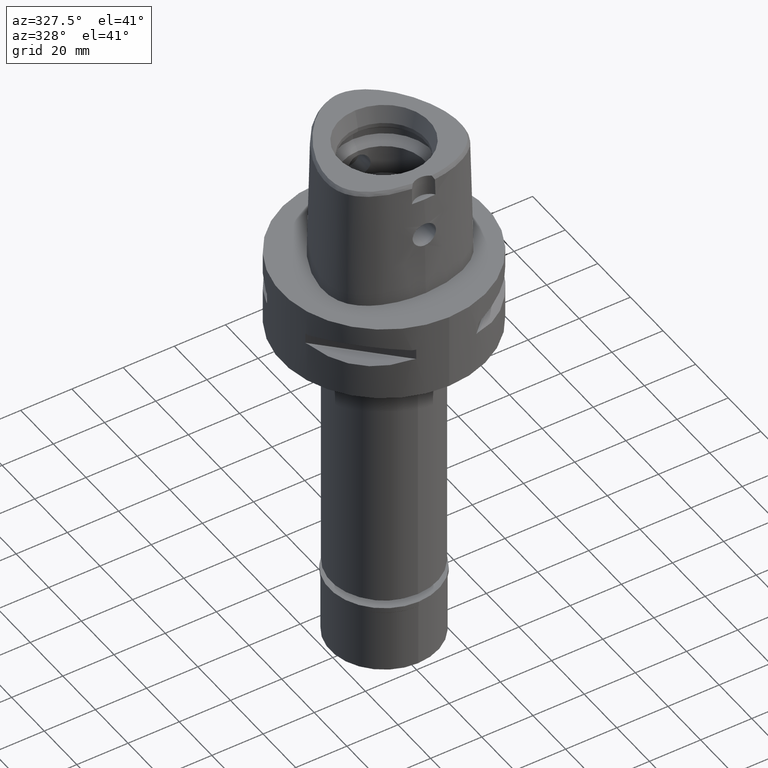
[diagram: clean part render]
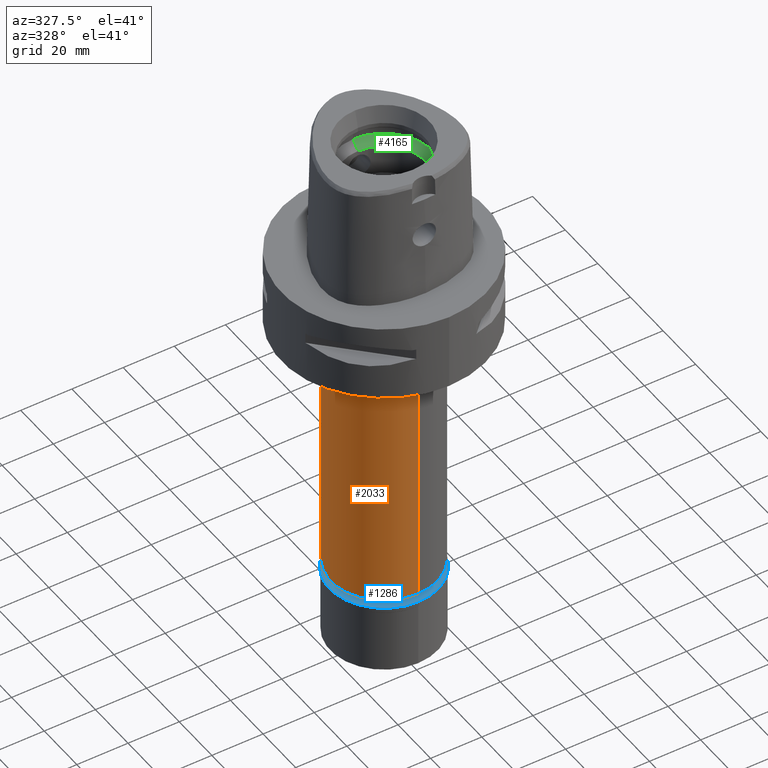
[diagram: same view with three faces highlighted in distinct colors, each labeled with its STEP entity id]
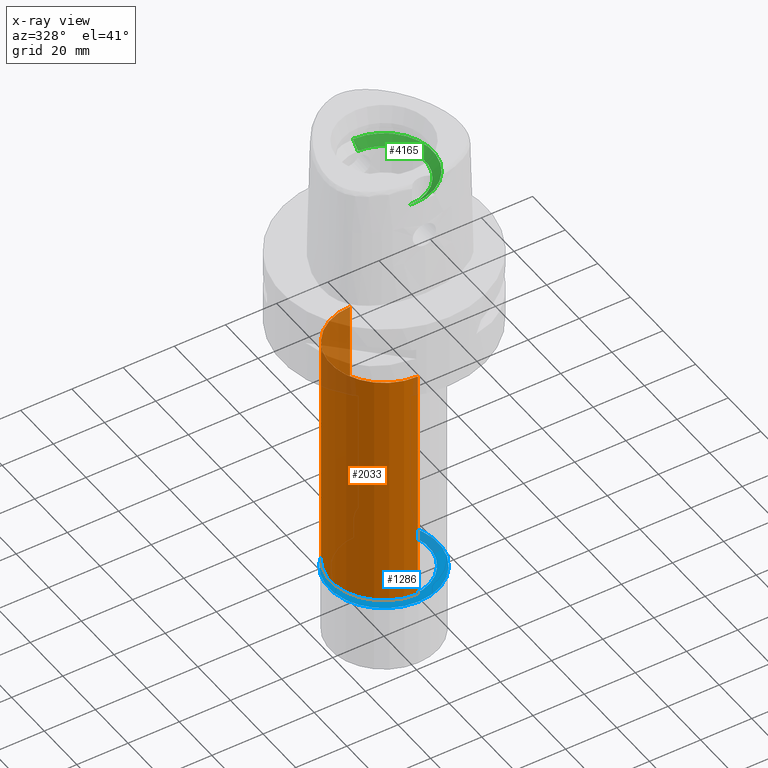
[diagram: x-ray of the same camera — body ghosted, the three highlighted faces saturated]
A machine part, auxiliary view with three faces highlighted in distinct colors.
The next image is the same camera in x-ray (body ghosted, the three faces saturated) — at least one of them is partly hidden behind the body in this view.
Their STEP definitions:

[orange] entity #2033 — the highlighted cylindrical surface (partial cylindrical patch) has radius 20.8 mm, axis along (0, 0, -1).
#21 = VERTEX_POINT ( 'NONE', #4106 ) ;
#518 = EDGE_CURVE ( 'NONE', #21, #1170, #3997, .T. ) ;
#543 = EDGE_CURVE ( 'NONE', #4333, #1170, #1305, .T. ) ;
#636 = DIRECTION ( 'NONE',  ( 0.0000000000000000000, 0.0000000000000000000, -1.000000000000000000 ) ) ;
#747 = EDGE_LOOP ( 'NONE', ( #3978, #1143, #3874, #4714 ) ) ;
#1136 = DIRECTION ( 'NONE',  ( 0.0000000000000000000, -1.000000000000000000, 0.0000000000000000000 ) ) ;
#1143 = ORIENTED_EDGE ( 'NONE', *, *, #518, .F. ) ;
#1149 = CARTESIAN_POINT ( 'NONE',  ( 0.0000000000000000000, 20.80000000000000071, -40.00000000000000000 ) ) ;
#1170 = VERTEX_POINT ( 'NONE', #2345 ) ;
#1289 = DIRECTION ( 'NONE',  ( 0.0000000000000000000, -1.000000000000000000, 0.0000000000000000000 ) ) ;
#1305 = CIRCLE ( 'NONE', #3128, 20.80000000000000071 ) ;
#1490 = VECTOR ( 'NONE', #636, 1000.000000000000000 ) ;
#1603 = VERTEX_POINT ( 'NONE', #1149 ) ;
#1917 = CYLINDRICAL_SURFACE ( 'NONE', #2875, 20.80000000000000071 ) ;
#1941 = FACE_OUTER_BOUND ( 'NONE', #747, .T. ) ;
#1947 = DIRECTION ( 'NONE',  ( 0.0000000000000000000, 0.0000000000000000000, 1.000000000000000000 ) ) ;
#1980 = CIRCLE ( 'NONE', #2627, 20.80000000000000071 ) ;
#2033 = ADVANCED_FACE ( 'NONE', ( #1941 ), #1917, .T. ) ;
#2345 = CARTESIAN_POINT ( 'NONE',  ( 0.0000000000000000000, -20.80000000000000071, -134.9000000000000057 ) ) ;
#2627 = AXIS2_PLACEMENT_3D ( 'NONE', #3262, #4836, #1289 ) ;
#2804 = CARTESIAN_POINT ( 'NONE',  ( 0.0000000000000000000, 1.318944602681999963E-14, -134.9000000000000057 ) ) ;
#2875 = AXIS2_PLACEMENT_3D ( 'NONE', #4270, #5072, #1136 ) ;
#3128 = AXIS2_PLACEMENT_3D ( 'NONE', #2804, #1947, #3144 ) ;
#3144 = DIRECTION ( 'NONE',  ( 0.0000000000000000000, 1.000000000000000000, 0.0000000000000000000 ) ) ;
#3262 = CARTESIAN_POINT ( 'NONE',  ( 0.0000000000000000000, 0.0000000000000000000, -40.00000000000000000 ) ) ;
#3265 = CARTESIAN_POINT ( 'NONE',  ( 0.0000000000000000000, 20.80000000000000071, -134.9000000000000057 ) ) ;
#3295 = LINE ( 'NONE', #4844, #1490 ) ;
#3400 = EDGE_CURVE ( 'NONE', #21, #1603, #1980, .T. ) ;
#3544 = VECTOR ( 'NONE', #3920, 1000.000000000000000 ) ;
#3721 = EDGE_CURVE ( 'NONE', #1603, #4333, #3295, .T. ) ;
#3874 = ORIENTED_EDGE ( 'NONE', *, *, #3400, .T. ) ;
#3920 = DIRECTION ( 'NONE',  ( 0.0000000000000000000, 0.0000000000000000000, -1.000000000000000000 ) ) ;
#3978 = ORIENTED_EDGE ( 'NONE', *, *, #543, .T. ) ;
#3997 = LINE ( 'NONE', #4794, #3544 ) ;
#4106 = CARTESIAN_POINT ( 'NONE',  ( 0.0000000000000000000, -20.80000000000000071, -40.00000000000000000 ) ) ;
#4270 = CARTESIAN_POINT ( 'NONE',  ( 0.0000000000000000000, 1.318944602681999963E-14, 7.700000000000000178 ) ) ;
#4333 = VERTEX_POINT ( 'NONE', #3265 ) ;
#4714 = ORIENTED_EDGE ( 'NONE', *, *, #3721, .T. ) ;
#4794 = CARTESIAN_POINT ( 'NONE',  ( 0.0000000000000000000, -20.80000000000000071, -40.00000000000000000 ) ) ;
#4836 = DIRECTION ( 'NONE',  ( 0.0000000000000000000, 0.0000000000000000000, -1.000000000000000000 ) ) ;
#4844 = CARTESIAN_POINT ( 'NONE',  ( 0.0000000000000000000, 20.80000000000000071, -40.00000000000000000 ) ) ;
#5072 = DIRECTION ( 'NONE',  ( 0.0000000000000000000, 0.0000000000000000000, -1.000000000000000000 ) ) ;

[blue] entity #1286 — the highlighted planar face has unit normal (0, 0, -1).
#74 = CARTESIAN_POINT ( 'NONE',  ( 0.0000000000000000000, 0.0000000000000000000, 0.0000000000000000000 ) ) ;
#103 = CIRCLE ( 'NONE', #265, 21.35000000000000142 ) ;
#265 = AXIS2_PLACEMENT_3D ( 'NONE', #74, #4869, #4021 ) ;
#271 = CARTESIAN_POINT ( 'NONE',  ( 0.0000000000000000000, -21.35000000000000142, 0.0000000000000000000 ) ) ;
#369 = VERTEX_POINT ( 'NONE', #2930 ) ;
#432 = CARTESIAN_POINT ( 'NONE',  ( 0.0000000000000000000, 0.0000000000000000000, 0.0000000000000000000 ) ) ;
#715 = ORIENTED_EDGE ( 'NONE', *, *, #4095, .F. ) ;
#755 = DIRECTION ( 'NONE',  ( 0.0000000000000000000, -1.000000000000000000, 0.0000000000000000000 ) ) ;
#832 = DIRECTION ( 'NONE',  ( 0.0000000000000000000, -1.000000000000000000, 0.0000000000000000000 ) ) ;
#965 = CIRCLE ( 'NONE', #1642, 17.50000000000000000 ) ;
#1017 = ORIENTED_EDGE ( 'NONE', *, *, #3126, .F. ) ;
#1102 = DIRECTION ( 'NONE',  ( 0.0000000000000000000, -1.000000000000000000, 0.0000000000000000000 ) ) ;
#1110 = FACE_BOUND ( 'NONE', #3176, .T. ) ;
#1118 = EDGE_LOOP ( 'NONE', ( #4062, #1017 ) ) ;
#1286 = ADVANCED_FACE ( 'NONE', ( #3132, #1110 ), #5040, .F. ) ;
#1475 = AXIS2_PLACEMENT_3D ( 'NONE', #432, #1608, #832 ) ;
#1608 = DIRECTION ( 'NONE',  ( 0.0000000000000000000, 0.0000000000000000000, 1.000000000000000000 ) ) ;
#1641 = VERTEX_POINT ( 'NONE', #3611 ) ;
#1642 = AXIS2_PLACEMENT_3D ( 'NONE', #3967, #3242, #4405 ) ;
#1826 = DIRECTION ( 'NONE',  ( 0.0000000000000000000, 0.0000000000000000000, -1.000000000000000000 ) ) ;
#1952 = VERTEX_POINT ( 'NONE', #271 ) ;
#2136 = CIRCLE ( 'NONE', #3217, 21.35000000000000142 ) ;
#2206 = CARTESIAN_POINT ( 'NONE',  ( 0.0000000000000000000, 0.0000000000000000000, 0.0000000000000000000 ) ) ;
#2330 = ORIENTED_EDGE ( 'NONE', *, *, #2669, .F. ) ;
#2669 = EDGE_CURVE ( 'NONE', #369, #3992, #3453, .T. ) ;
#2684 = CARTESIAN_POINT ( 'NONE',  ( 0.0000000000000000000, 0.0000000000000000000, 0.0000000000000000000 ) ) ;
#2930 = CARTESIAN_POINT ( 'NONE',  ( 0.0000000000000000000, -17.50000000000000000, 0.0000000000000000000 ) ) ;
#3126 = EDGE_CURVE ( 'NONE', #1952, #1641, #2136, .T. ) ;
#3132 = FACE_OUTER_BOUND ( 'NONE', #1118, .T. ) ;
#3176 = EDGE_LOOP ( 'NONE', ( #715, #2330 ) ) ;
#3217 = AXIS2_PLACEMENT_3D ( 'NONE', #2206, #1826, #1102 ) ;
#3242 = DIRECTION ( 'NONE',  ( 0.0000000000000000000, 0.0000000000000000000, 1.000000000000000000 ) ) ;
#3364 = AXIS2_PLACEMENT_3D ( 'NONE', #2684, #3461, #755 ) ;
#3453 = CIRCLE ( 'NONE', #1475, 17.50000000000000000 ) ;
#3461 = DIRECTION ( 'NONE',  ( 0.0000000000000000000, 0.0000000000000000000, -1.000000000000000000 ) ) ;
#3496 = CARTESIAN_POINT ( 'NONE',  ( 0.0000000000000000000, 17.50000000000000000, 0.0000000000000000000 ) ) ;
#3611 = CARTESIAN_POINT ( 'NONE',  ( 0.0000000000000000000, 21.35000000000000142, 0.0000000000000000000 ) ) ;
#3967 = CARTESIAN_POINT ( 'NONE',  ( 0.0000000000000000000, 0.0000000000000000000, 0.0000000000000000000 ) ) ;
#3992 = VERTEX_POINT ( 'NONE', #3496 ) ;
#4021 = DIRECTION ( 'NONE',  ( 0.0000000000000000000, 1.000000000000000000, 0.0000000000000000000 ) ) ;
#4062 = ORIENTED_EDGE ( 'NONE', *, *, #5080, .F. ) ;
#4095 = EDGE_CURVE ( 'NONE', #3992, #369, #965, .T. ) ;
#4405 = DIRECTION ( 'NONE',  ( 0.0000000000000000000, 1.000000000000000000, 0.0000000000000000000 ) ) ;
#4869 = DIRECTION ( 'NONE',  ( 0.0000000000000000000, 0.0000000000000000000, -1.000000000000000000 ) ) ;
#5040 = PLANE ( 'NONE',  #3364 ) ;
#5080 = EDGE_CURVE ( 'NONE', #1641, #1952, #103, .T. ) ;

[green] entity #4165 — the highlighted conical surface has half-angle 45 deg.
#67 = CARTESIAN_POINT ( 'NONE',  ( 0.0000000000000000000, 0.0000000000000000000, 31.50000000000000000 ) ) ;
#94 = CARTESIAN_POINT ( 'NONE',  ( 0.0000000000000000000, 0.0000000000000000000, 33.00000000000000000 ) ) ;
#188 = LINE ( 'NONE', #982, #2065 ) ;
#297 = DIRECTION ( 'NONE',  ( 0.0000000000000000000, 1.000000000000000000, 0.0000000000000000000 ) ) ;
#321 = AXIS2_PLACEMENT_3D ( 'NONE', #67, #2750, #815 ) ;
#731 = CIRCLE ( 'NONE', #321, 16.00000000000000000 ) ;
#744 = CIRCLE ( 'NONE', #4195, 19.00000000000000000 ) ;
#815 = DIRECTION ( 'NONE',  ( 0.0000000000000000000, -1.000000000000000000, 0.0000000000000000000 ) ) ;
#817 = VERTEX_POINT ( 'NONE', #2862 ) ;
#982 = CARTESIAN_POINT ( 'NONE',  ( 0.0000000000000000000, -16.00000000000000000, 31.50000000000000000 ) ) ;
#1140 = CARTESIAN_POINT ( 'NONE',  ( 0.0000000000000000000, -19.00000000000000000, 34.50000000000000000 ) ) ;
#1172 = DIRECTION ( 'NONE',  ( 0.0000000000000000000, 1.000000000000000000, 0.0000000000000000000 ) ) ;
#1456 = LINE ( 'NONE', #2285, #3627 ) ;
#1524 = ORIENTED_EDGE ( 'NONE', *, *, #4016, .F. ) ;
#1557 = AXIS2_PLACEMENT_3D ( 'NONE', #94, #2362, #1172 ) ;
#2065 = VECTOR ( 'NONE', #2067, 1000.000000000000114 ) ;
#2067 = DIRECTION ( 'NONE',  ( 0.0000000000000000000, -0.7071067811865474617, 0.7071067811865474617 ) ) ;
#2195 = CARTESIAN_POINT ( 'NONE',  ( 0.0000000000000000000, 0.0000000000000000000, 34.50000000000000000 ) ) ;
#2285 = CARTESIAN_POINT ( 'NONE',  ( 0.0000000000000000000, 16.00000000000000000, 31.50000000000000000 ) ) ;
#2362 = DIRECTION ( 'NONE',  ( 0.0000000000000000000, 0.0000000000000000000, 1.000000000000000000 ) ) ;
#2592 = DIRECTION ( 'NONE',  ( 0.0000000000000000000, 0.7071067811865474617, 0.7071067811865474617 ) ) ;
#2738 = VERTEX_POINT ( 'NONE', #4437 ) ;
#2750 = DIRECTION ( 'NONE',  ( 0.0000000000000000000, 0.0000000000000000000, 1.000000000000000000 ) ) ;
#2862 = CARTESIAN_POINT ( 'NONE',  ( 0.0000000000000000000, -16.00000000000000000, 31.50000000000000000 ) ) ;
#2963 = EDGE_CURVE ( 'NONE', #2738, #3172, #1456, .T. ) ;
#3172 = VERTEX_POINT ( 'NONE', #4206 ) ;
#3189 = FACE_OUTER_BOUND ( 'NONE', #4268, .T. ) ;
#3218 = ORIENTED_EDGE ( 'NONE', *, *, #4441, .T. ) ;
#3467 = DIRECTION ( 'NONE',  ( 0.0000000000000000000, 0.0000000000000000000, -1.000000000000000000 ) ) ;
#3627 = VECTOR ( 'NONE', #2592, 1000.000000000000114 ) ;
#3774 = CONICAL_SURFACE ( 'NONE', #1557, 17.50000000000000000, 0.7853981633972997312 ) ;
#3907 = EDGE_CURVE ( 'NONE', #3172, #3995, #744, .T. ) ;
#3995 = VERTEX_POINT ( 'NONE', #1140 ) ;
#4016 = EDGE_CURVE ( 'NONE', #817, #2738, #731, .T. ) ;
#4165 = ADVANCED_FACE ( 'NONE', ( #3189 ), #3774, .F. ) ;
#4195 = AXIS2_PLACEMENT_3D ( 'NONE', #2195, #3467, #297 ) ;
#4206 = CARTESIAN_POINT ( 'NONE',  ( 0.0000000000000000000, 19.00000000000000000, 34.50000000000000000 ) ) ;
#4268 = EDGE_LOOP ( 'NONE', ( #4710, #4404, #1524, #3218 ) ) ;
#4404 = ORIENTED_EDGE ( 'NONE', *, *, #2963, .F. ) ;
#4437 = CARTESIAN_POINT ( 'NONE',  ( 0.0000000000000000000, 16.00000000000000000, 31.50000000000000000 ) ) ;
#4441 = EDGE_CURVE ( 'NONE', #817, #3995, #188, .T. ) ;
#4710 = ORIENTED_EDGE ( 'NONE', *, *, #3907, .F. ) ;